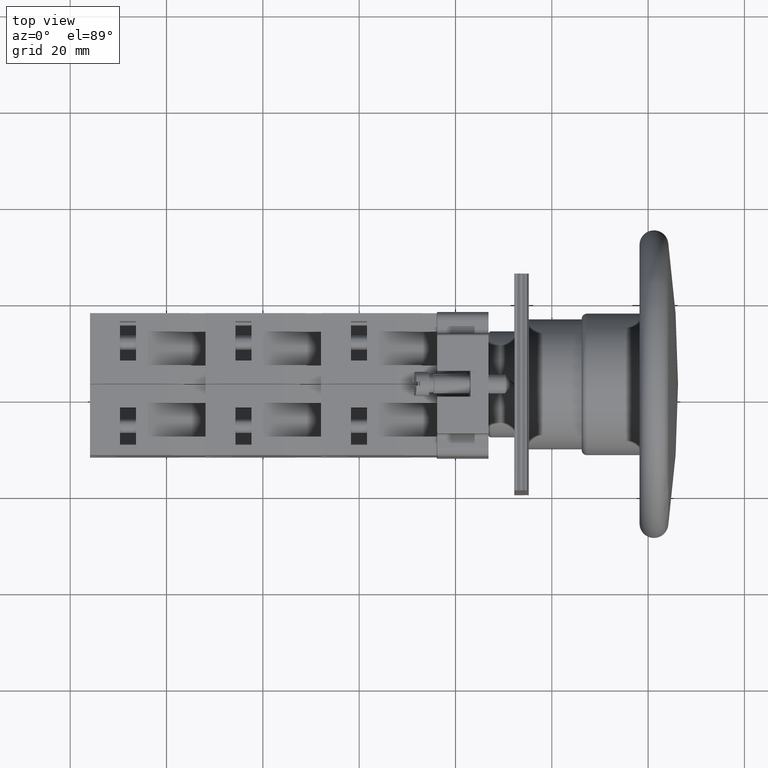
[diagram: clean part render]
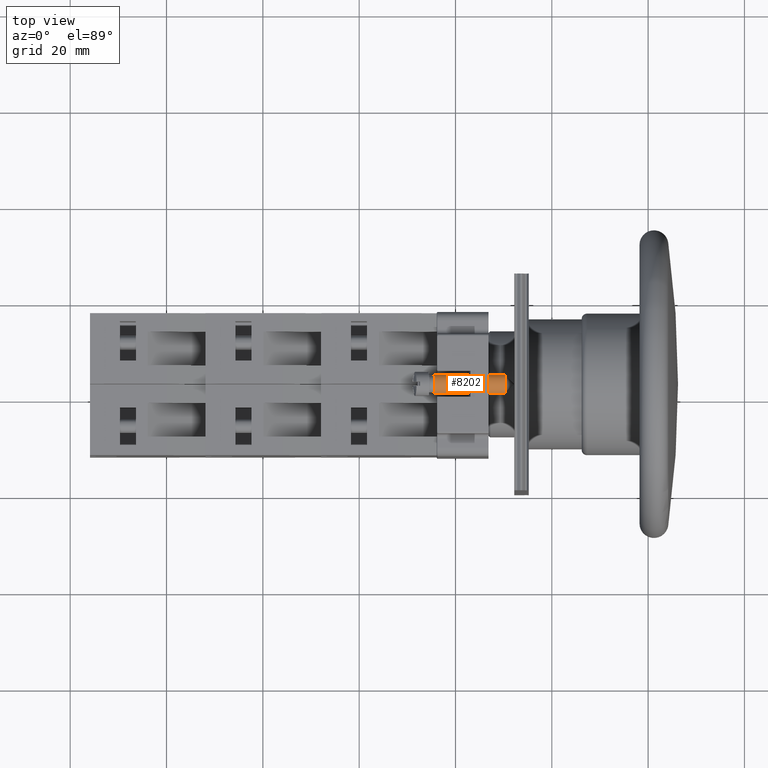
[diagram: same view with one face highlighted and labeled with its STEP entity id]
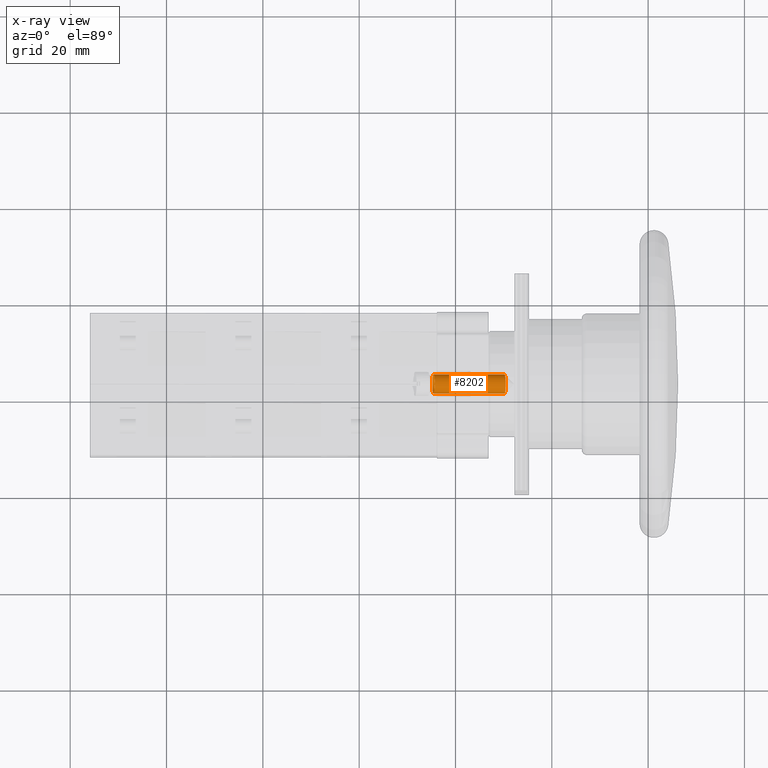
[diagram: x-ray of the same camera — body ghosted, the highlighted face saturated]
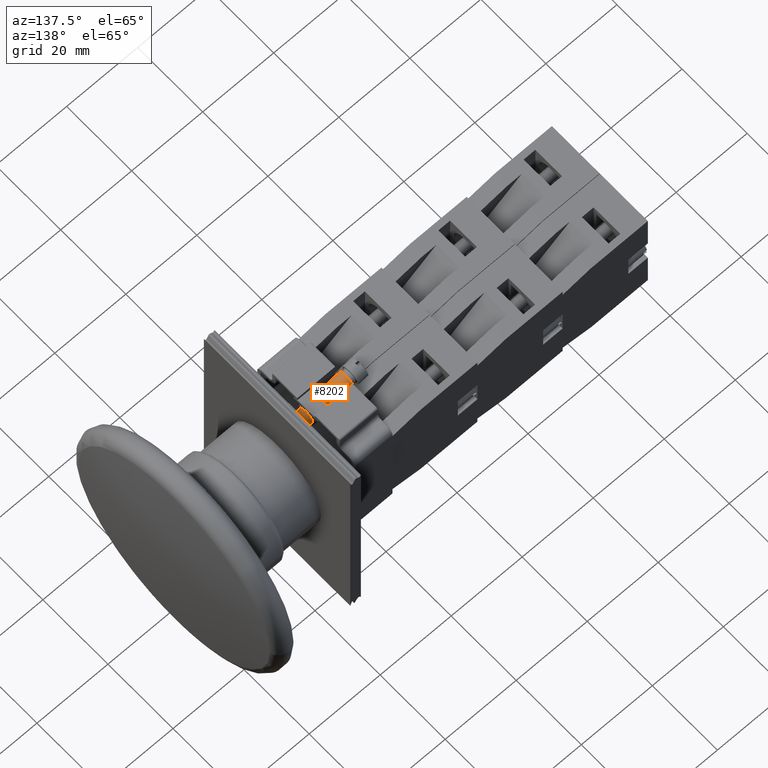
[diagram: same view with one face highlighted and labeled with its STEP entity id]
A machine part, top view. The second image highlights one B-rep face of the part: STEP entity #8202.
The next image is the same camera in x-ray: the body ghosted, the highlighted face saturated — about 0% of this face is hidden behind the body in this view.
A second angle (auxiliary view) of the same face is appended — the face is thin or edge-on in the first view.
In plain terms, the highlighted cylindrical surface (bore or boss wall) has radius 2 mm, axis along (0.9914, 0, -0.1305).
Its self-contained STEP definition (entity closure, byte-faithful):
#8171=CARTESIAN_POINT('',(-1.999999999999998,0.0,-1.119999999999999));
#8172=VERTEX_POINT('',#8171);
#8173=CARTESIAN_POINT('',(0.0,0.0,-1.119999999999999));
#8174=DIRECTION('',(0.0,0.0,-1.0));
#8175=DIRECTION('',(-1.0,0.0,0.0));
#8176=AXIS2_PLACEMENT_3D('',#8173,#8174,#8175);
#8177=CIRCLE('',#8176,1.999999999999998);
#8178=EDGE_CURVE('',#8172,#8172,#8177,.T.);
#8183=CARTESIAN_POINT('',(0.0,0.0,-8.559999999999999));
#8184=DIRECTION('',(0.0,0.0,-1.0));
#8185=DIRECTION('',(-1.0,0.0,0.0));
#8186=AXIS2_PLACEMENT_3D('',#8183,#8184,#8185);
#8187=CYLINDRICAL_SURFACE('',#8186,1.999999999999999);
#8188=CARTESIAN_POINT('',(-2.000000000000000,0.0,-15.999999999999998));
#8189=VERTEX_POINT('',#8188);
#8190=CARTESIAN_POINT('',(0.0,0.0,-15.999999999999998));
#8191=DIRECTION('',(0.0,0.0,-1.0));
#8192=DIRECTION('',(-1.0,0.0,0.0));
#8193=AXIS2_PLACEMENT_3D('',#8190,#8191,#8192);
#8194=CIRCLE('',#8193,2.000000000000000);
#8195=EDGE_CURVE('',#8189,#8189,#8194,.T.);
#8196=ORIENTED_EDGE('',*,*,#8195,.F.);
#8197=EDGE_LOOP('',(#8196));
#8198=FACE_OUTER_BOUND('',#8197,.T.);
#8199=ORIENTED_EDGE('',*,*,#8178,.T.);
#8200=EDGE_LOOP('',(#8199));
#8201=FACE_BOUND('',#8200,.T.);
#8202=ADVANCED_FACE('',(#8198,#8201),#8187,.T.);